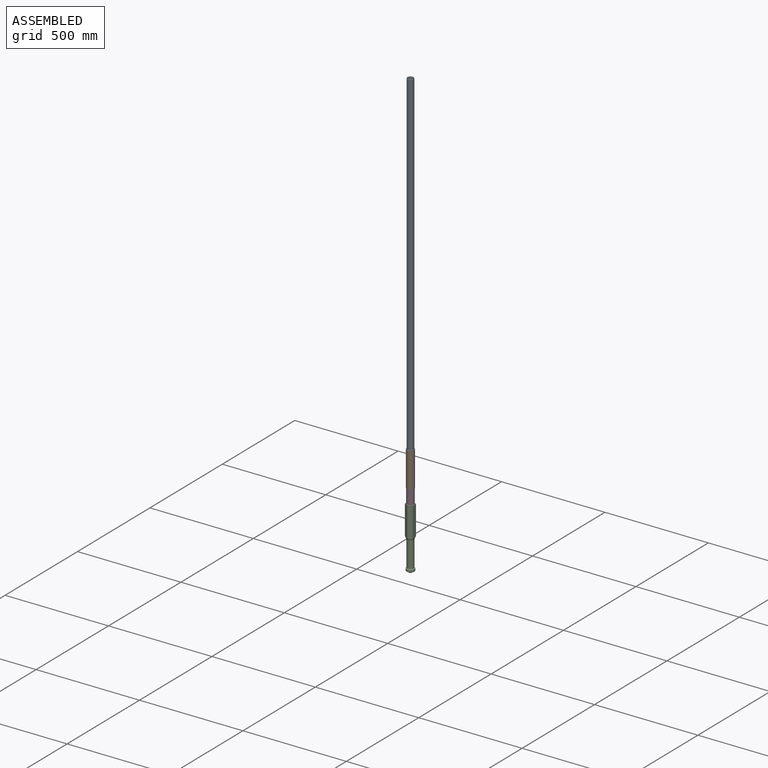
[diagram: assembled view]
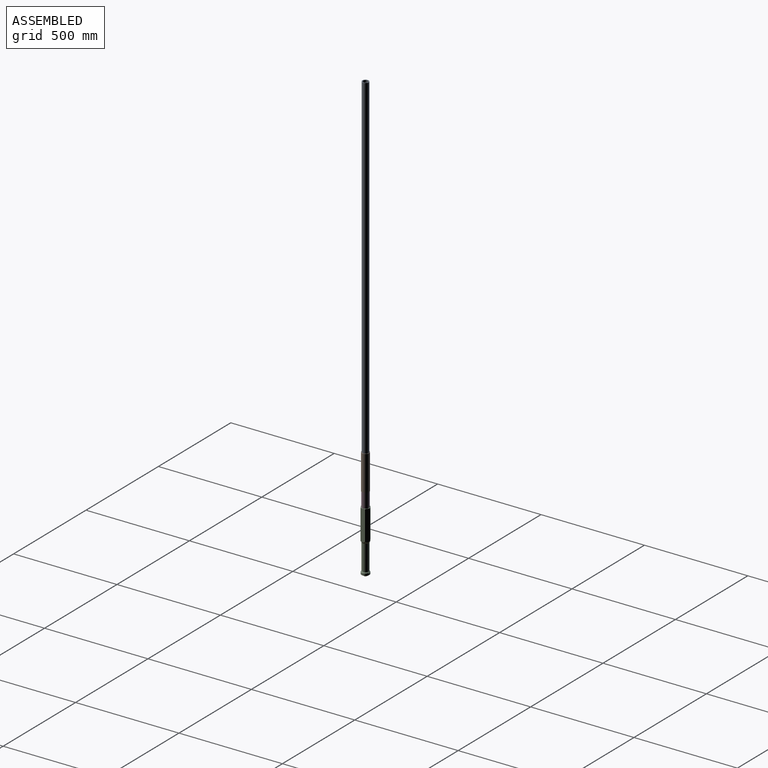
[diagram: assembled view, second angle]
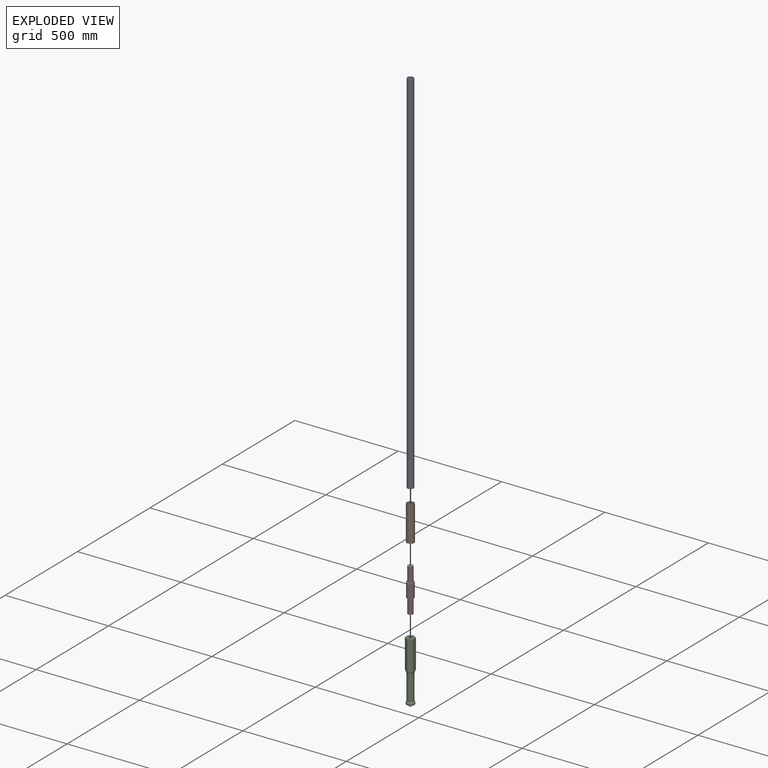
[diagram: exploded view]
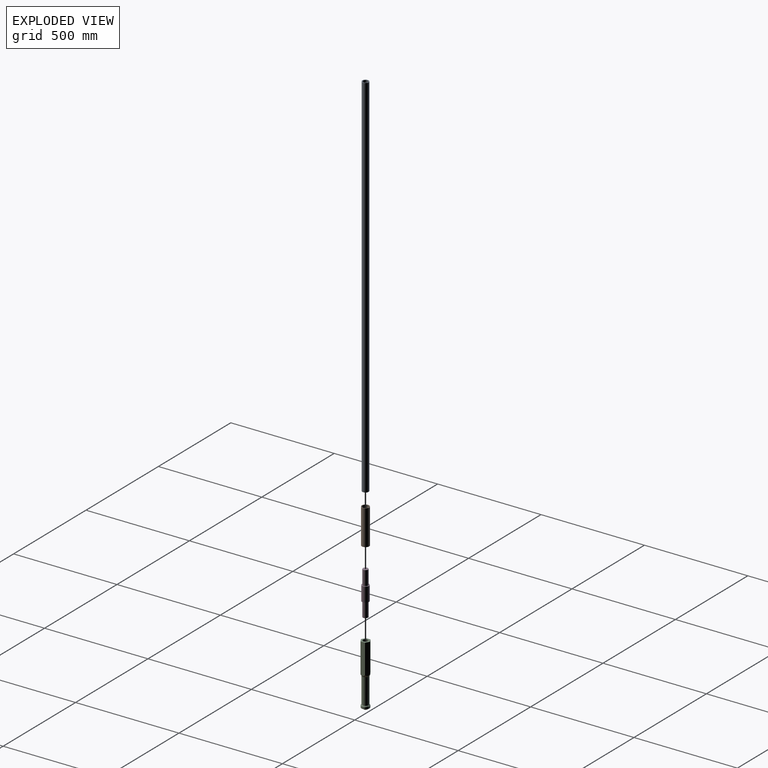
[diagram: exploded view, second angle]
ASSEMBLY  parts=4 mates=6
PART A: 4 faces, bbox 31x31x1790 mm
  f0: cylinder r=12.5mm len=1790mm, axis (0,0,-1), area 140586.3mm2, adj f2,f3
  f1: cylinder r=15.5mm len=1790mm, axis (0,0,-1), area 174327mm2, adj f2,f3
  f2: plane 31x31mm, normal (0,0,1), area 263.9mm2, adj f0,f1
  f3: plane 31x31mm, normal (0,0,-1), area 263.9mm2, adj f0,f1
PART B: 4 faces, bbox 36x36x170 mm
  f0: cylinder r=15.75mm len=170mm, axis (0,0,-1), area 16823.2mm2, adj f2,f3
  f1: cylinder r=18mm len=170mm, axis (0,0,-1), area 19226.5mm2, adj f2,f3
  f2: plane 36x36mm, normal (0,0,1), area 238.6mm2, adj f0,f1
  f3: plane 36x36mm, normal (0,0,-1), area 238.6mm2, adj f0,f1
PART C: 26 faces, bbox 44.2x44.2x300.3 mm
  f0: plane 147.74x21.95mm, normal (-1,0,0), area 3196.6mm2, adj f1,f5,f6,f16
  f1: plane 147.74x19mm, normal (-0.5,-0.87,0), area 3196.6mm2, adj f0,f2,f6,f16
  f2: plane 147.74x19mm, normal (0.5,-0.87,0), area 3196.6mm2, adj f1,f3,f6,f16
  f3: plane 147.74x21.95mm, normal (1,0,0), area 3196.6mm2, adj f2,f4,f6,f16
  f4: plane 147.74x19mm, normal (0.5,0.87,0), area 3196.6mm2, adj f3,f5,f6,f16
  f5: plane 147.74x19mm, normal (-0.5,0.87,0), area 3196.6mm2, adj f0,f4,f6,f16
  f6: plane 43.88x38mm, normal (0,0,1), area 759.7mm2, adj f0,f1,f2,f3,f4,f5,f7
  f7: cylinder r=12.5mm len=70mm, axis (0,0,1), area 5497.8mm2, adj f6,f8
  f8: plane 25x25mm, normal (0,0,1), area 490.9mm2, adj f7
  f9: cylinder r=19.33mm len=11.12mm, axis (0,0,-1), area 123mm2, adj f14,f18,f19,f24
  f10: cylinder r=19.33mm len=11.12mm, axis (0,0,-1), area 123mm2, adj f14,f18,f23,f24
  f11: cylinder r=19.33mm len=12.85mm, axis (0,0,-1), area 123mm2, adj f14,f18,f22,f23
  f12: cylinder r=19.33mm len=11.12mm, axis (0,0,-1), area 123mm2, adj f14,f18,f21,f22
  f13: cylinder r=19.33mm len=11.12mm, axis (0,0,-1), area 123mm2, adj f14,f18,f20,f21
  f14: cone r=19.33mm half-angle=57.1deg, axis (0,0,1), area 1193.1mm2, adj f9,f10,f11,f12,f13,f17,f19,f20
  f15: cylinder r=16.18mm len=125.03mm, axis (0,0,-1), area 12714mm2, adj f16,f18
  f16: cone r=16.18mm half-angle=26.4deg, axis (0,0,1), area 963.1mm2, adj f0,f1,f2,f3,f4,f5,f15
  f17: cylinder r=19.33mm len=12.85mm, axis (0,0,-1), area 123mm2, adj f14,f18,f19,f20
  f18: cone r=16.18mm half-angle=36.1deg, axis (0,0,-1), area 580.2mm2, adj f9,f10,f11,f12,f13,f15,f17,f19
  f19: plane 10.06x6.16mm, normal (-0.5,0.87,0), area 69.9mm2, adj f9,f14,f17,f18
  f20: plane 10.06x6.16mm, normal (0.5,0.87,0), area 69.9mm2, adj f13,f14,f17,f18
  f21: plane 10.26x7.32mm, normal (1,0,0), area 69.9mm2, adj f12,f13,f14,f18
  f22: plane 10.06x6.16mm, normal (0.5,-0.87,0), area 69.9mm2, adj f11,f12,f14,f18
  f23: plane 10.06x6.16mm, normal (-0.5,-0.87,0), area 69.9mm2, adj f10,f11,f14,f18
  f24: plane 10.34x7.4mm, normal (-1,0,0), area 69.9mm2, adj f9,f10,f14,f18
  f25: plane 14.43x14.43mm, normal (0,0,-1), area 163.5mm2, adj f14
PART D: 7 faces, bbox 34x34x210 mm
  f0: plane 25.3x25.3mm, normal (0,0,-1), area 502.7mm2, adj f6
  f1: plane 25.3x25.3mm, normal (0,0,1), area 502.7mm2, adj f2
  f2: cylinder r=12.65mm len=70mm, axis (0,0,-1), area 5563.8mm2, adj f1,f3
  f3: plane 34x34mm, normal (0,0,1), area 405.2mm2, adj f2,f4
  f4: cylinder r=17mm len=70mm, axis (0,0,-1), area 7477mm2, adj f3,f5
  f5: plane 34x34mm, normal (0,0,-1), area 405.2mm2, adj f4,f6
  f6: cylinder r=12.65mm len=70mm, axis (0,0,-1), area 5563.8mm2, adj f0,f5
PLACE A t=(-51.12,16.12,874.01)mm
PLACE B t=(-51.12,16.12,64.01)mm
PLACE C t=(-51.12,16.12,-240.99)mm
PLACE D t=(-51.12,16.12,-160.99)mm
MATE cylindrical C.f7 <-> D.f2  axis (0,0,1) through (-51.12,16.12,-125.99)mm
MATE cylindrical D.f2 <-> A.f1  axis (0,0,-1) through (-51.12,16.12,14.01)mm
MATE planar A.f1 <-> D.f2  axis (0,0,-1) through (-51.12,16.12,-20.99)mm
MATE planar C.f7 <-> D.f2  axis (0,0,1) through (-51.12,16.12,-90.99)mm
MATE cylindrical B.f1 <-> A.f1  axis (0,0,-1) through (-51.12,16.12,64.01)mm
MATE planar B.f1 <-> A.f1  axis (0,0,-1) through (-51.12,16.12,-20.99)mm
